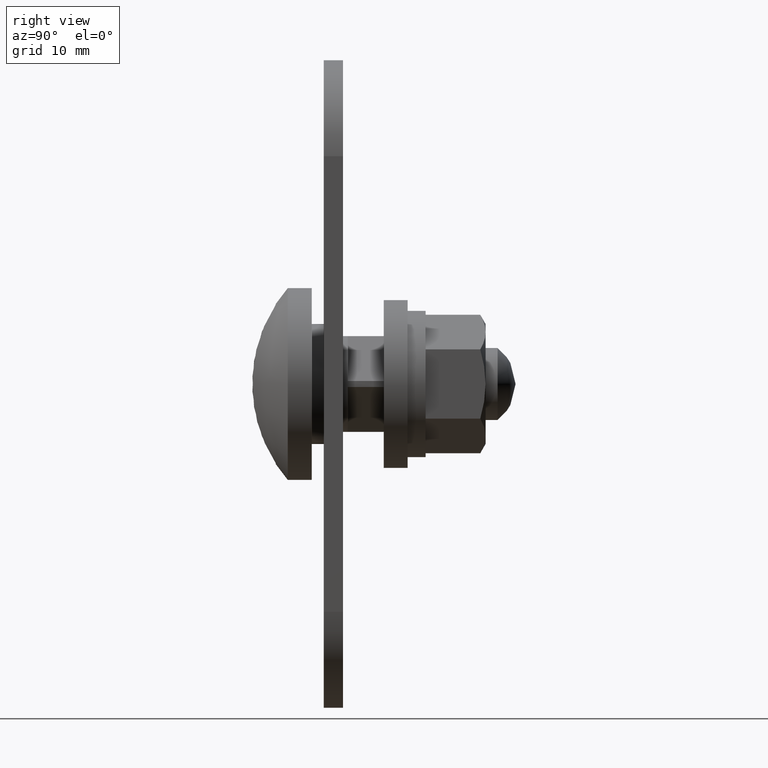
[diagram: clean part render]
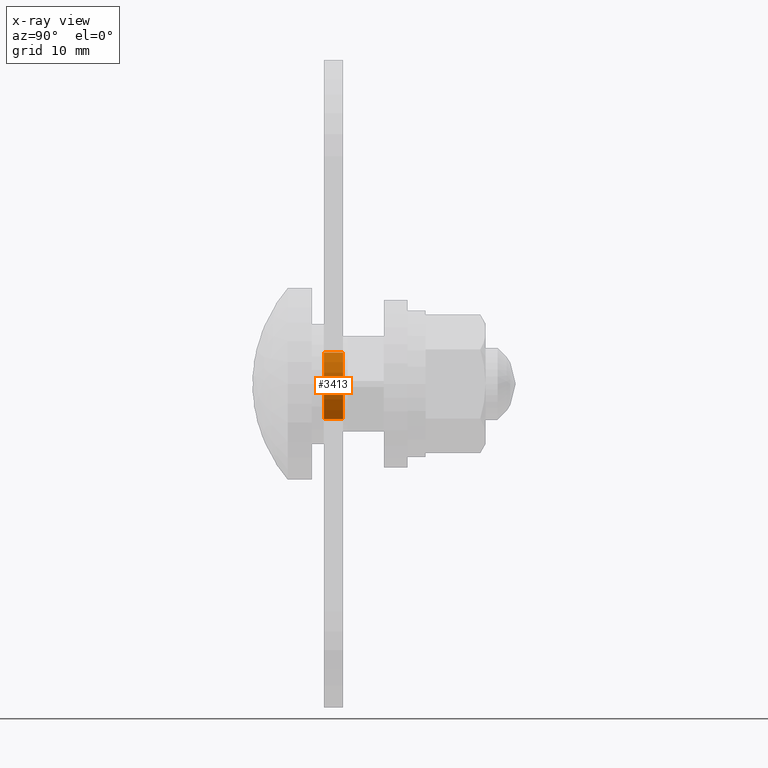
[diagram: x-ray — body ghosted, one internal face saturated and labeled with its STEP entity id]
A machine part, right view, then the same camera in x-ray: the body is ghosted and one INTERNAL B-rep face — a face not visible from any outside direction — is saturated and labeled: STEP entity #3413.
In plain terms, the highlighted face is a freeform B-spline surface patch.
Its self-contained STEP definition (entity closure, byte-faithful):
#3223=CARTESIAN_POINT('',(3.092400469154631,-1.599991000001859,2.615255294156009));
#3224=VERTEX_POINT('',#3223);
#3269=CARTESIAN_POINT('',(2.787835918983155,-1.599990999997954,-2.937766151683632));
#3270=VERTEX_POINT('',#3269);
#3281=CARTESIAN_POINT('',(2.787835919395448,-3.816392E-017,-2.937766151292380));
#3282=VERTEX_POINT('',#3281);
#3283=CARTESIAN_POINT('',(2.787835919395448,-3.816392E-017,-2.937766151292380));
#3284=CARTESIAN_POINT('',(2.787835918983155,-1.599990999997954,-2.937766151683632));
#3285=QUASI_UNIFORM_CURVE('',1,(#3283,#3284),.UNSPECIFIED.,.F.,.U.);
#3286=EDGE_CURVE('',#3282,#3270,#3285,.T.);
#3332=CARTESIAN_POINT('',(3.092400468792818,-3.904214E-017,2.615255294583833));
#3333=VERTEX_POINT('',#3332);
#3345=CARTESIAN_POINT('',(3.092400468792818,-3.904214E-017,2.615255294583833));
#3346=CARTESIAN_POINT('',(3.092400469154631,-1.599991000001859,2.615255294156009));
#3347=QUASI_UNIFORM_CURVE('',1,(#3345,#3346),.UNSPECIFIED.,.F.,.U.);
#3348=EDGE_CURVE('',#3333,#3224,#3347,.T.);
#3353=CARTESIAN_POINT('',(2.787836031559702,0.039999774999999,-2.937766202599764));
#3354=CARTESIAN_POINT('',(5.562125650609031,0.039999774999999,-0.305063656317029));
#3355=CARTESIAN_POINT('',(3.092400353908882,0.039999774999999,2.615255255447202));
#3356=CARTESIAN_POINT('',(2.787836031559702,-1.640990769374964,-2.937766202599764));
#3357=CARTESIAN_POINT('',(5.562125650609031,-1.640990769374964,-0.305063656317029));
#3358=CARTESIAN_POINT('',(3.092400353908882,-1.640990769374965,2.615255255447202));
#3366=(BOUNDED_SURFACE()B_SPLINE_SURFACE(2,1,((#3353,#3356),(#3354,#3357),(#3355,#3358)),.UNSPECIFIED.,.F.,.F.,.U.)B_SPLINE_SURFACE_WITH_KNOTS((3,3),(2,2),(0.0,6.440081412770597),(0.0,1.0),.UNSPECIFIED.)GEOMETRIC_REPRESENTATION_ITEM()RATIONAL_B_SPLINE_SURFACE(((1.0,1.0),(0.718822509939086,0.718822509939086),(0.977505800795127,0.977505800795127)))REPRESENTATION_ITEM('')SURFACE());
#3367=CARTESIAN_POINT('',(4.049999999999973,-1.599990999999965,0.000000458331472));
#3368=VERTEX_POINT('',#3367);
#3369=CARTESIAN_POINT('',(4.049999999999973,-1.599990999999965,0.000000458331472));
#3370=CARTESIAN_POINT('',(4.050147345321640,-1.599991000000244,0.385021680494588));
#3371=CARTESIAN_POINT('',(3.962745837365865,-1.599991000000690,0.992037114315919));
#3372=CARTESIAN_POINT('',(3.621113157875833,-1.599991000001318,1.879469827514581));
#3373=CARTESIAN_POINT('',(3.312407704599532,-1.599991000001674,2.355261533687516));
#3374=CARTESIAN_POINT('',(3.092400469154631,-1.599991000001859,2.615255294156009));
#3375=B_SPLINE_CURVE_WITH_KNOTS('',3,(#3369,#3370,#3371,#3372,#3373,#3374),.UNSPECIFIED.,.F.,.U.,(4,1,1,4),(0.000000012530482,1.155009485333611,1.821353007942206,2.843092339355573),.UNSPECIFIED.);
#3376=EDGE_CURVE('',#3368,#3224,#3375,.T.);
#3377=ORIENTED_EDGE('',*,*,#3376,.T.);
#3378=ORIENTED_EDGE('',*,*,#3348,.F.);
#3379=CARTESIAN_POINT('',(4.049999999999973,0.0,0.000000458331472));
#3380=VERTEX_POINT('',#3379);
#3381=CARTESIAN_POINT('',(4.049999999999973,0.0,0.000000458331472));
#3382=CARTESIAN_POINT('',(4.050013335170339,-3.757967E-018,0.251729535548440));
#3383=CARTESIAN_POINT('',(3.997412479908575,-1.215826E-017,0.814427069484117));
#3384=CARTESIAN_POINT('',(3.714040923694002,-2.575719E-017,1.725357046290256));
#3385=CARTESIAN_POINT('',(3.341123608561907,-3.465480E-017,2.321367472700882));
#3386=CARTESIAN_POINT('',(3.092400468792818,-3.904214E-017,2.615255294583833));
#3387=B_SPLINE_CURVE_WITH_KNOTS('',3,(#3381,#3382,#3383,#3384,#3385,#3386),.UNSPECIFIED.,.F.,.U.,(4,1,1,4),(0.000000012530525,0.755196916126529,1.688082866877942,2.843092339915888),.UNSPECIFIED.);
#3388=EDGE_CURVE('',#3380,#3333,#3387,.T.);
#3389=ORIENTED_EDGE('',*,*,#3388,.F.);
#3390=CARTESIAN_POINT('',(2.787835919395448,-3.816392E-017,-2.937766151292380));
#3391=CARTESIAN_POINT('',(2.961698824237356,-3.602091E-017,-2.772802412003677));
#3392=CARTESIAN_POINT('',(3.291390689146556,-3.116492E-017,-2.398999906914581));
#3393=CARTESIAN_POINT('',(3.653240560915428,-2.330387E-017,-1.793875618788867));
#3394=CARTESIAN_POINT('',(3.961906471046350,-1.289758E-017,-0.992824529655005));
#3395=CARTESIAN_POINT('',(4.050164129829514,-5.115335E-018,-0.393765746528907));
#3396=CARTESIAN_POINT('',(4.049999999999973,0.0,0.000000458331472));
#3397=B_SPLINE_CURVE_WITH_KNOTS('',3,(#3390,#3391,#3392,#3393,#3394,#3395,#3396),.UNSPECIFIED.,.F.,.U.,(4,1,1,1,4),(0.000000016472788,0.719011960539485,1.489392776201737,2.105678138751504,3.286913793346115),.UNSPECIFIED.);
#3398=EDGE_CURVE('',#3282,#3380,#3397,.T.);
#3399=ORIENTED_EDGE('',*,*,#3398,.F.);
#3400=ORIENTED_EDGE('',*,*,#3286,.T.);
#3401=CARTESIAN_POINT('',(2.787835918983155,-1.599990999997954,-2.937766151683632));
#3402=CARTESIAN_POINT('',(3.011403582672485,-1.599990999998101,-2.725693667472977));
#3403=CARTESIAN_POINT('',(3.398666969683116,-1.599990999998413,-2.263382151183006));
#3404=CARTESIAN_POINT('',(3.761295607858146,-1.599990999998897,-1.559207491373230));
#3405=CARTESIAN_POINT('',(3.993044856083322,-1.599990999999419,-0.804578728298740));
#3406=CARTESIAN_POINT('',(4.050066773174976,-1.599990999999753,-0.308152803475064));
#3407=CARTESIAN_POINT('',(4.049999999999973,-1.599990999999965,0.000000458331472));
#3408=B_SPLINE_CURVE_WITH_KNOTS('',3,(#3401,#3402,#3403,#3404,#3405,#3406,#3407),.UNSPECIFIED.,.F.,.U.,(4,1,1,1,4),(0.000000016472933,0.924444961002549,1.797521033919546,2.362468849384825,3.286913793914511),.UNSPECIFIED.);
#3409=EDGE_CURVE('',#3270,#3368,#3408,.T.);
#3410=ORIENTED_EDGE('',*,*,#3409,.T.);
#3411=EDGE_LOOP('',(#3377,#3378,#3389,#3399,#3400,#3410));
#3412=FACE_OUTER_BOUND('',#3411,.T.);
#3413=ADVANCED_FACE('',(#3412),#3366,.F.);